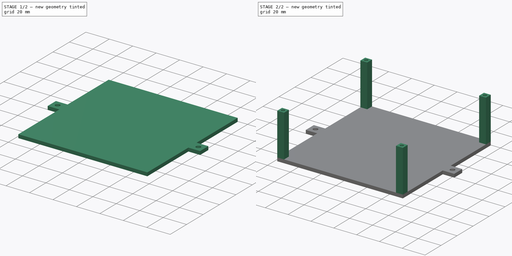
[diagram: build sequence overview — one tinted view per stage of 2, left to right]
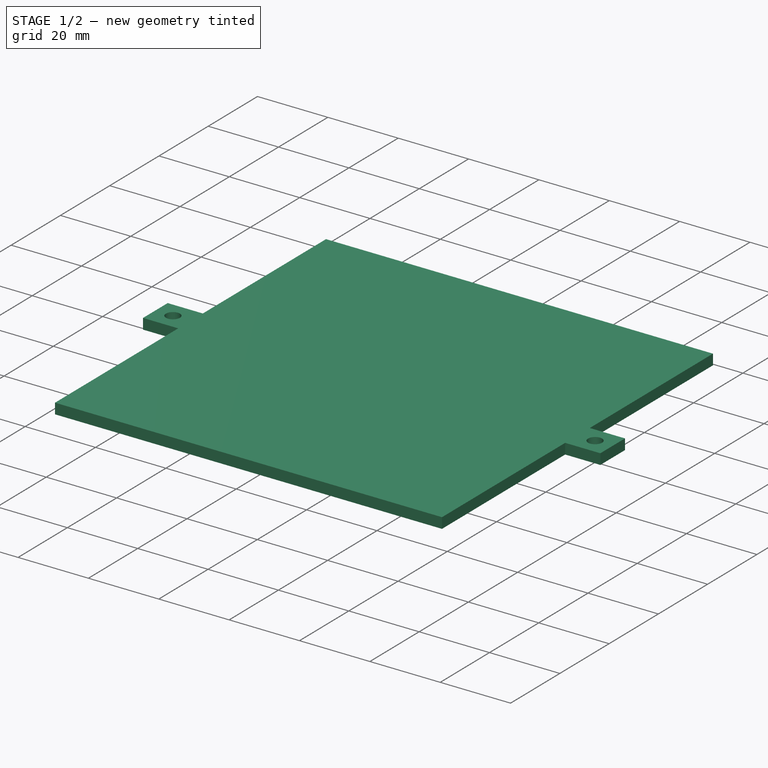
[diagram: stage 1 of 2 — iso view after this stage's code; geometry added in this stage tinted green]
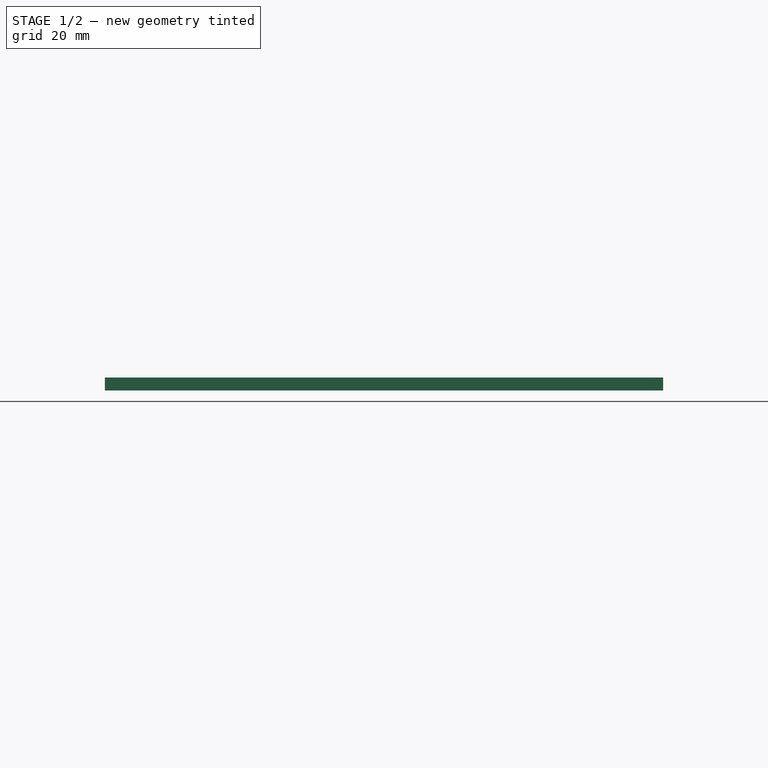
[diagram: stage 1 of 2 — front view after this stage's code; geometry added in this stage tinted green]
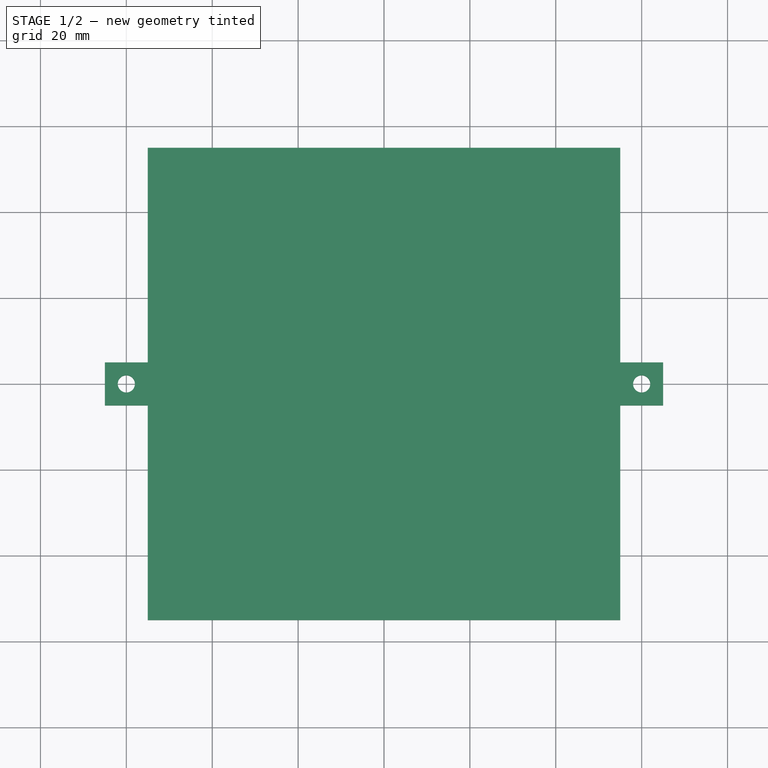
[diagram: stage 1 of 2 — top view after this stage's code; geometry added in this stage tinted green]
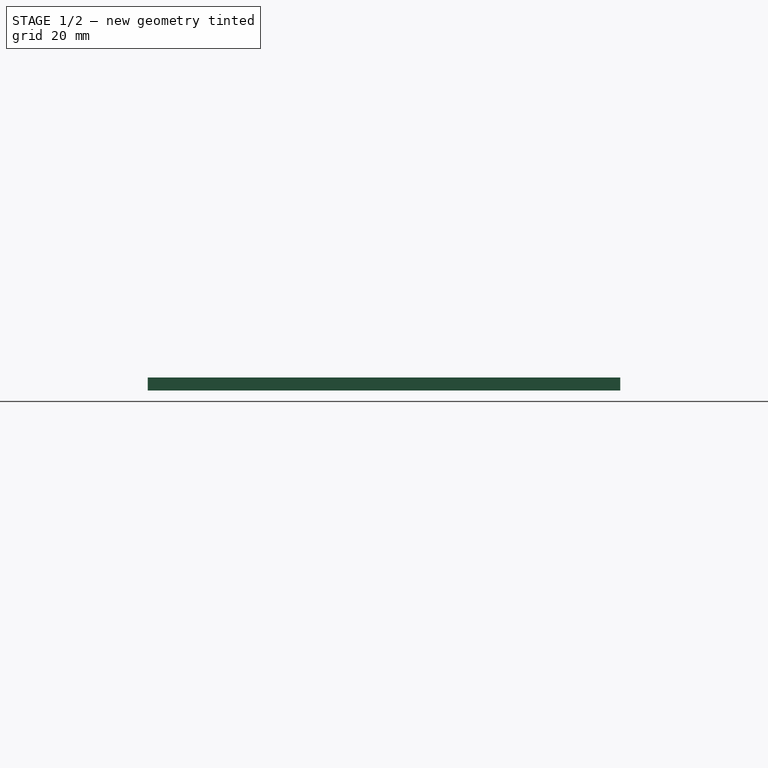
[diagram: stage 1 of 2 — right view after this stage's code; geometry added in this stage tinted green]
FCSTD DOCUMENT  (FreeCAD 0.19R24366 (Git))
Label: piholders
License: All rights reserved
LicenseURL: http://en.wikipedia.org/wiki/All_rights_reserved
objects: Sketcher::SketchObject×4, PartDesign::Pad×2, PartDesign::Pocket×2, PartDesign::Body×1
note: 13 computed .brp shape members not serialized (recipe doc carries the construction recipe); baked Part::Feature solids carry a one-line shape summary decoded from their .brp

FEATURE [Sketcher::SketchObject] Sketch
  FullyConstrained = true
  MapMode = 5
  Support = -> [XY_Plane]
  sketch-geometry (12):
    g0: LineSegment StartX=-55 StartY=55 StartZ=0 EndX=55 EndY=55 EndZ=0
    g1: LineSegment StartX=55 StartY=55 StartZ=0 EndX=55 EndY=5 EndZ=0
    g2: LineSegment StartX=55 StartY=-55 StartZ=0 EndX=-55 EndY=-55 EndZ=0
    g3: LineSegment StartX=-55 StartY=-55 StartZ=0 EndX=-55 EndY=-5 EndZ=0
    g4: LineSegment StartX=-65 StartY=5 StartZ=0 EndX=-55 EndY=5 EndZ=0
    g5: LineSegment StartX=-55 StartY=-5 StartZ=0 EndX=-65 EndY=-5 EndZ=0
    g6: LineSegment StartX=-65 StartY=-5 StartZ=0 EndX=-65 EndY=5 EndZ=0
    g7: LineSegment StartX=55 StartY=5 StartZ=0 EndX=65 EndY=5 EndZ=0
    g8: LineSegment StartX=65 StartY=5 StartZ=0 EndX=65 EndY=-5 EndZ=0
    g9: LineSegment StartX=65 StartY=-5 StartZ=0 EndX=55 EndY=-5 EndZ=0
    g10: LineSegment StartX=-55 StartY=5 StartZ=0 EndX=-55 EndY=55 EndZ=0
    g11: LineSegment StartX=55 StartY=-5 StartZ=0 EndX=55 EndY=-55 EndZ=0
  constraints (31):
    c: Coincident(g0,g1)
    c: Coincident(g11,g2)
    c: Coincident(g2,g3)
    c: Coincident(g10,g0)
    c: Horizontal(g0)
    c: Horizontal(g2)
    c: Vertical(g1)
    c: Vertical(g3)
    c: DistanceX(g0,g0) = 110
    c: DistanceY(g3,g10) = 110
    c: Symmetric(g0,g2,g-1)
    c: Coincident(g5,g6)
    c: Coincident(g6,g4)
    c: Horizontal(g4)
    c: Horizontal(g5)
    c: DistanceX(g4,g4) = 10
    c: DistanceY(g6,g6) = 10
    c: Symmetric(g4,g5,g-1)
    c: Coincident(g7,g8)
    c: Coincident(g8,g9)
    c: Horizontal(g7)
    c: Horizontal(g9)
    c: DistanceX(g7,g7) = 10
    c: DistanceY(g8,g8) = 10
    c: Symmetric(g8,g7,g-1)
    c: Tangent(g3,g10)
    c: Coincident(g1,g7)
    c: Tangent(g1,g11)
    c: Coincident(g4,g10)
    c: Coincident(g5,g3)
    c: Coincident(g9,g11)
FEATURE [PartDesign::Pad] Pad
  Direction = (1,1,1)
  Length = 3
  Length2 = 100
  Profile = -> Sketch
  Type = 0
FEATURE [Sketcher::SketchObject] Sketch001
  ExternalGeometry = -> [Pad]
  FullyConstrained = true
  MapMode = 5
  Support = -> [XY_Plane]
  sketch-geometry (2):
    g0: Circle CenterX=-60 CenterY=-4.9e-15 CenterZ=0 NormalX=0 NormalY=0 NormalZ=1 AngleXU=0 Radius=2
    g1: Circle CenterX=60 CenterY=3.6e-15 CenterZ=0 NormalX=0 NormalY=0 NormalZ=1 AngleXU=0 Radius=2
  constraints (4):
    c: Radius(g0) = 2
    c: Symmetric(g-3,g-4,g0)
    c: Radius(g1) = 2
    c: Symmetric(g-5,g-6,g1)
FEATURE [PartDesign::Pocket] Pocket
  BaseFeature = -> Pad
  Length = 5
  Length2 = 100
  Profile = -> Sketch001
  Reversed = true
  Type = 0
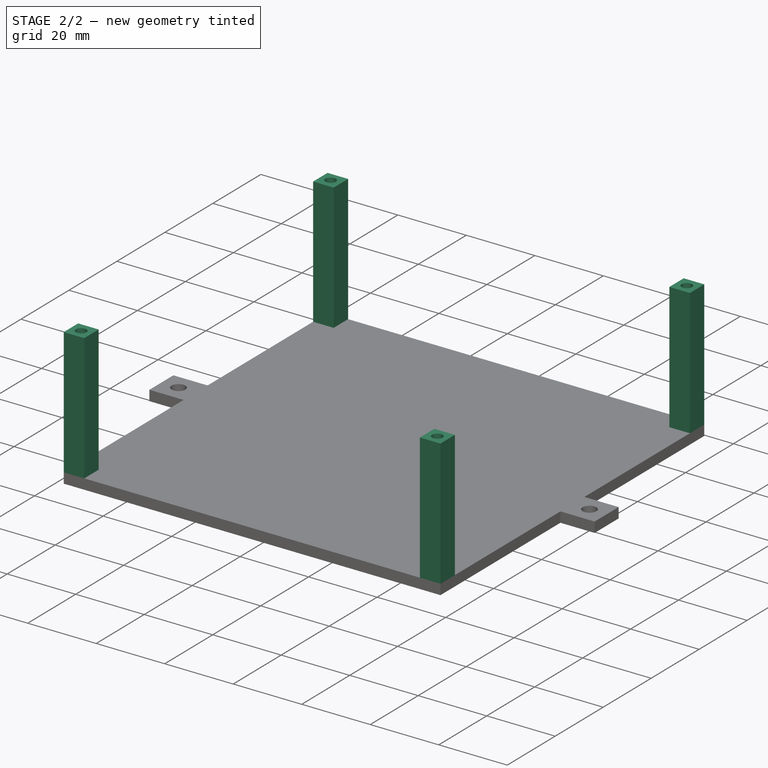
[diagram: stage 2 of 2 — iso view after this stage's code; geometry added in this stage tinted green]
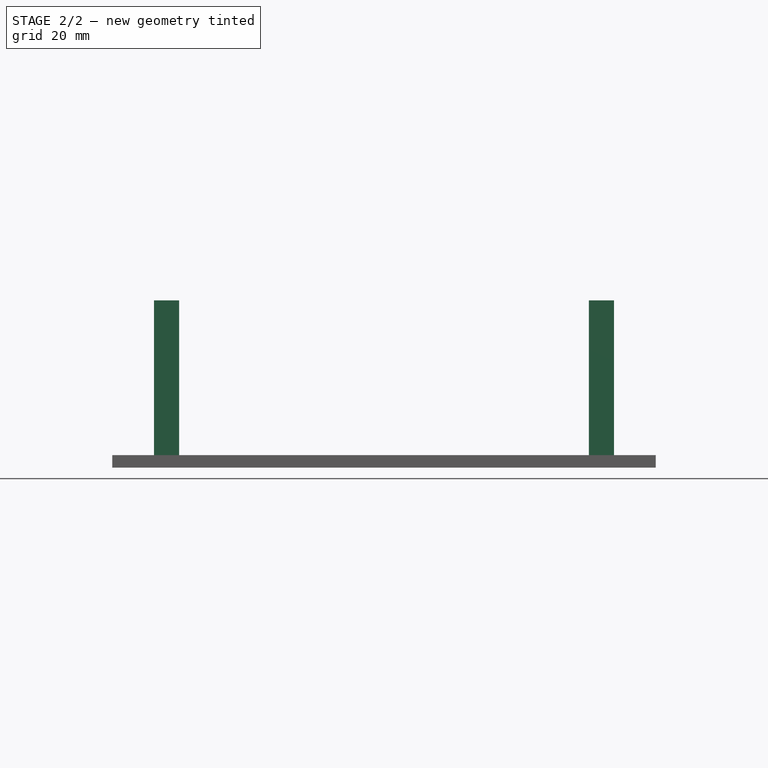
[diagram: stage 2 of 2 — front view after this stage's code; geometry added in this stage tinted green]
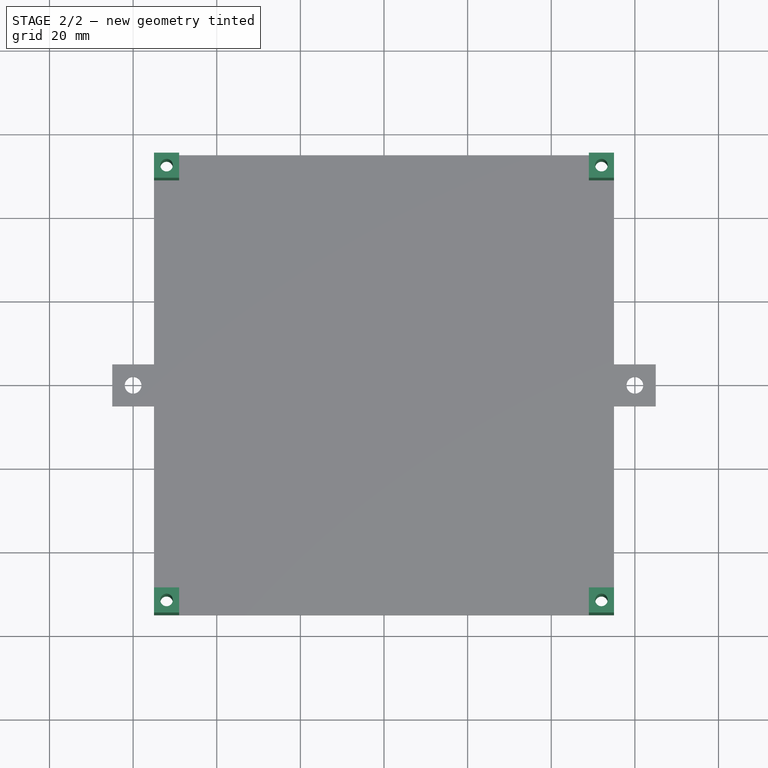
[diagram: stage 2 of 2 — top view after this stage's code; geometry added in this stage tinted green]
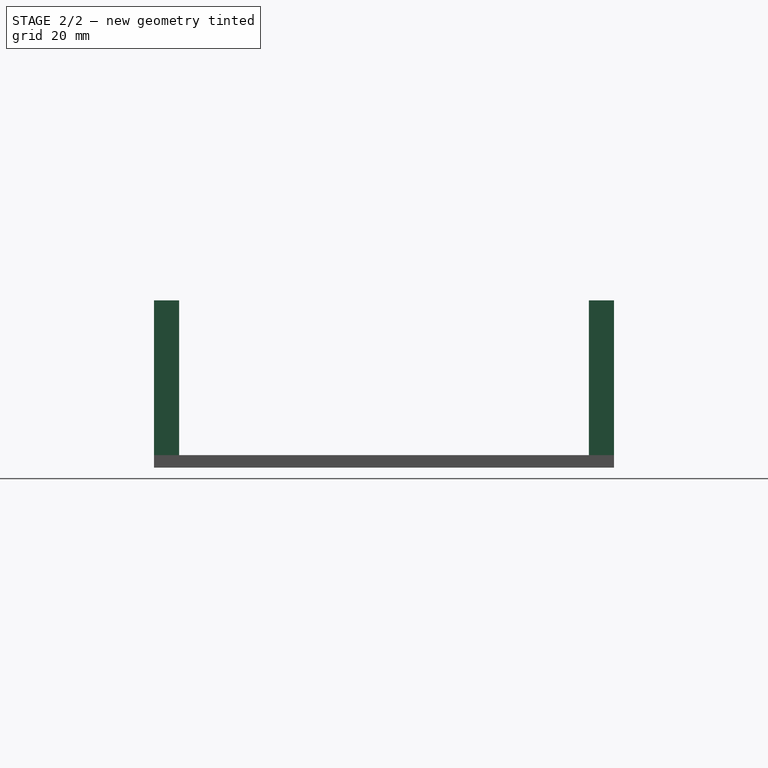
[diagram: stage 2 of 2 — right view after this stage's code; geometry added in this stage tinted green]
FEATURE [Sketcher::SketchObject] Sketch002
  ExternalGeometry = -> [Pocket]
  FullyConstrained = true
  MapMode = 5
  Support = -> [XY_Plane]
  sketch-geometry (16):
    g0: LineSegment StartX=-55 StartY=55 StartZ=0 EndX=-49 EndY=55 EndZ=0
    g1: LineSegment StartX=-49 StartY=55 StartZ=0 EndX=-49 EndY=49 EndZ=0
    g2: LineSegment StartX=-49 StartY=49 StartZ=0 EndX=-55 EndY=49 EndZ=0
    g3: LineSegment StartX=-55 StartY=49 StartZ=0 EndX=-55 EndY=55 EndZ=0
    g4: LineSegment StartX=55 StartY=55 StartZ=0 EndX=49 EndY=55 EndZ=0
    g5: LineSegment StartX=49 StartY=55 StartZ=0 EndX=49 EndY=49 EndZ=0
    g6: LineSegment StartX=49 StartY=49 StartZ=0 EndX=55 EndY=49 EndZ=0
    g7: LineSegment StartX=55 StartY=49 StartZ=0 EndX=55 EndY=55 EndZ=0
    g8: LineSegment StartX=-55 StartY=-55 StartZ=0 EndX=-49 EndY=-55 EndZ=0
    g9: LineSegment StartX=-49 StartY=-55 StartZ=0 EndX=-49 EndY=-49 EndZ=0
    g10: LineSegment StartX=-49 StartY=-49 StartZ=0 EndX=-55 EndY=-49 EndZ=0
    g11: LineSegment StartX=-55 StartY=-49 StartZ=0 EndX=-55 EndY=-55 EndZ=0
    g12: LineSegment StartX=55 StartY=-55 StartZ=0 EndX=49 EndY=-55 EndZ=0
    g13: LineSegment StartX=49 StartY=-55 StartZ=0 EndX=49 EndY=-49 EndZ=0
    g14: LineSegment StartX=49 StartY=-49 StartZ=0 EndX=55 EndY=-49 EndZ=0
    g15: LineSegment StartX=55 StartY=-49 StartZ=0 EndX=55 EndY=-55 EndZ=0
  constraints (44):
    c: Coincident(g0,g1)
    c: Coincident(g1,g2)
    c: Coincident(g2,g3)
    c: Coincident(g3,g0)
    c: Horizontal(g0)
    c: Horizontal(g2)
    c: Vertical(g1)
    c: Vertical(g3)
    c: Coincident(g0,g-3)
    c: DistanceX(g0,g0) = 6
    c: DistanceY(g1,g1) = 6
    c: Coincident(g4,g5)
    c: Coincident(g5,g6)
    c: Coincident(g6,g7)
    c: Coincident(g7,g4)
    c: Horizontal(g4)
    c: Horizontal(g6)
    c: Vertical(g5)
    c: Vertical(g7)
    c: Coincident(g4,g-6)
    c: DistanceX(g4,g4) = 6
    c: DistanceY(g5,g5) = 6
    c: Coincident(g8,g9)
    c: Coincident(g9,g10)
    c: Coincident(g10,g11)
    c: Coincident(g11,g8)
    c: Horizontal(g8)
    c: Horizontal(g10)
    c: Vertical(g9)
    c: Vertical(g11)
    c: Coincident(g8,g-5)
    c: DistanceY(g9,g9) = 6
    c: DistanceX(g10,g10) = 6
    c: Coincident(g12,g13)
    c: Coincident(g13,g14)
    c: Coincident(g14,g15)
    c: Coincident(g15,g12)
    c: Horizontal(g12)
    c: Horizontal(g14)
    c: Vertical(g13)
    c: Vertical(g15)
    c: Coincident(g12,g-5)
    c: DistanceX(g14,g14) = 6
    c: DistanceY(g15,g15) = 6
FEATURE [PartDesign::Pad] Pad001
  BaseFeature = -> Pocket
  Direction = (1,1,1)
  Length = 40
  Length2 = 100
  Profile = -> Sketch002
  Type = 0
FEATURE [Sketcher::SketchObject] Sketch003
  ExternalGeometry = -> [Pad001]
  FullyConstrained = true
  MapMode = 5
  Support = -> [XY_Plane]
  sketch-geometry (4):
    g0: Circle CenterX=-52 CenterY=-52 CenterZ=0 NormalX=0 NormalY=0 NormalZ=1 AngleXU=0 Radius=1.5
    g1: Circle CenterX=52 CenterY=-52 CenterZ=0 NormalX=0 NormalY=0 NormalZ=1 AngleXU=0 Radius=1.5
    g2: Circle CenterX=52 CenterY=52 CenterZ=0 NormalX=0 NormalY=0 NormalZ=1 AngleXU=0 Radius=1.5
    g3: Circle CenterX=-52 CenterY=52 CenterZ=0 NormalX=0 NormalY=0 NormalZ=1 AngleXU=0 Radius=1.5
  constraints (8):
    c: Symmetric(g-3,g-4,g0)
    c: Radius(g0) = 1.5
    c: Symmetric(g-5,g-6,g1)
    c: Radius(g1) = 1.5
    c: Symmetric(g-9,g-10,g3)
    c: Symmetric(g-7,g-8,g2)
    c: Radius(g3) = 1.5
    c: Radius(g2) = 1.5
FEATURE [PartDesign::Pocket] Pocket001
  BaseFeature = -> Pad001
  Length = 5
  Length2 = 100
  Profile = -> Sketch003
  Reversed = true
  Type = 1
FEATURE [PartDesign::Body] Body
  Group = -> [Sketch,Pad,Sketch001,Pocket,Sketch002,Pad001,Sketch003,Pocket001]
  Origin = -> Origin
  Tip = -> Pocket001
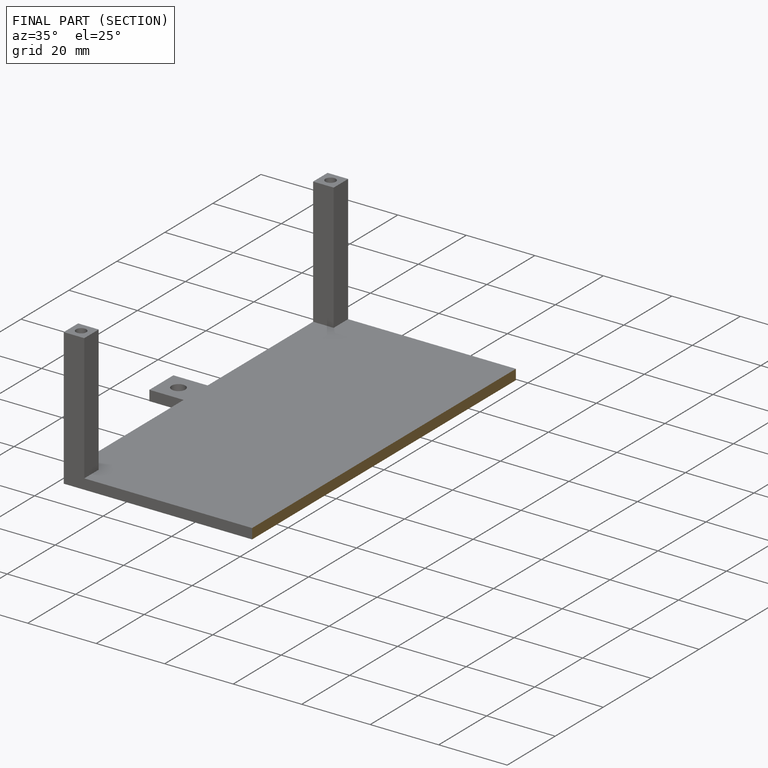
[diagram: finished part — half-section view (interior)]
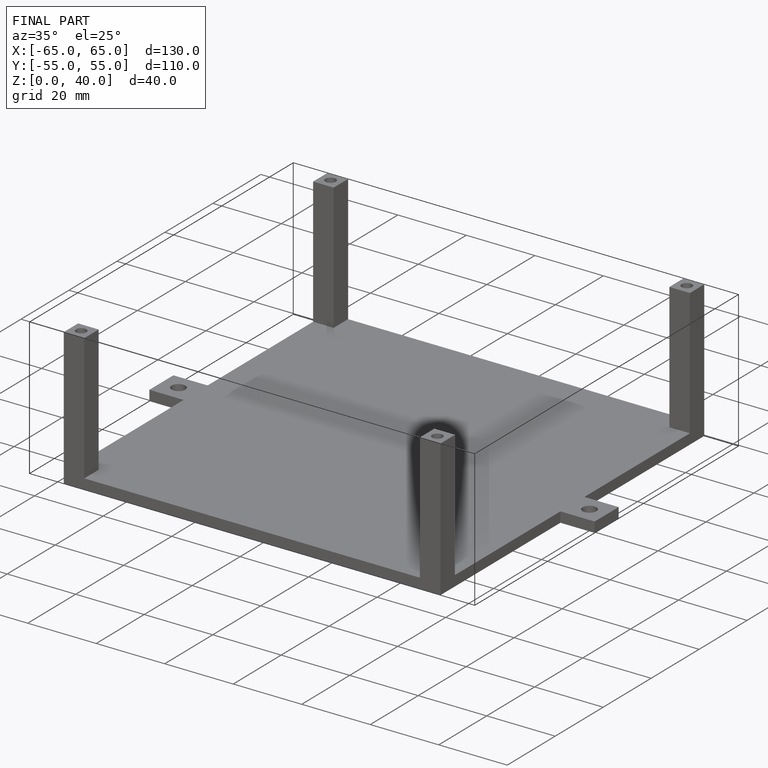
[diagram: finished part — iso view with bounding-box wireframe]
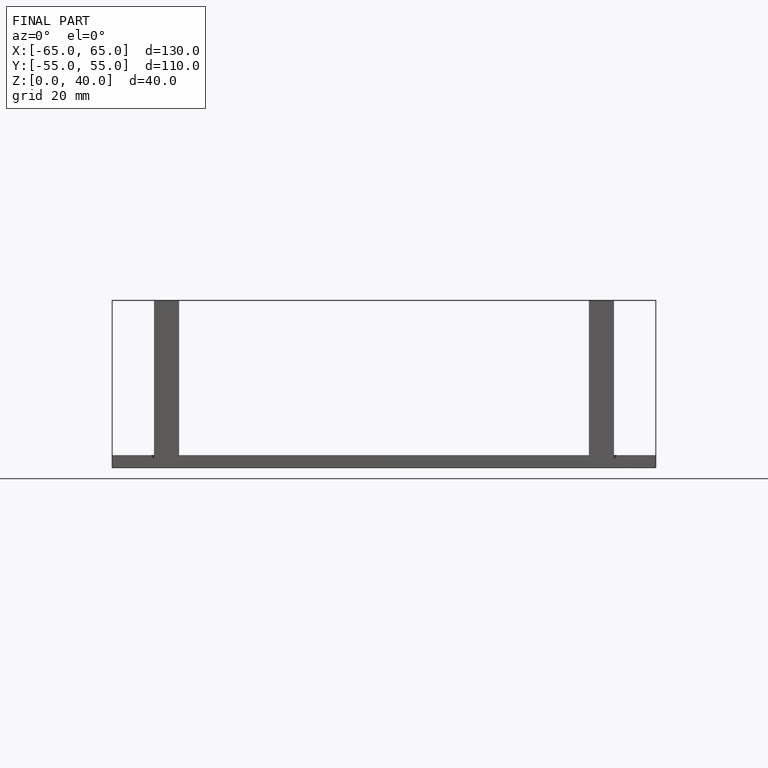
[diagram: finished part — front view with bounding-box wireframe]
